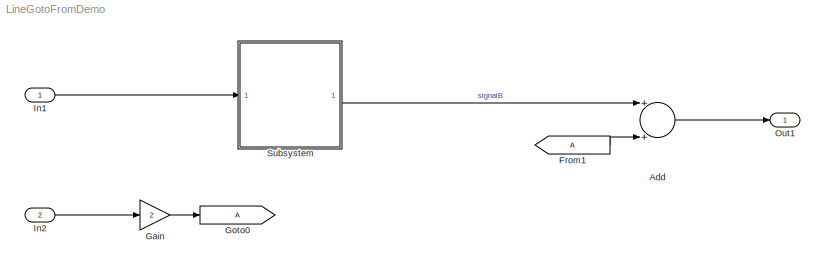
MODEL LineGotoFromDemo
KIND model
BLOCK [Sum] Add
  InputSameDT = off
  OutDataTypeStr = Inherit: Inherit via internal rule
  Ports = [2, 1]
  SID = 33
  SaturateOnIntegerOverflow = off
BLOCK [From] From1
  GotoTag = A
  SID = 62
BLOCK [Gain] Gain
  Gain = 2
  OutDataTypeStr = Inherit: Inherit via internal rule
  ParamDataTypeStr = Inherit: Inherit via internal rule
  SID = 60
  SaturateOnIntegerOverflow = off
BLOCK [Goto] Goto0
  GotoTag = A
  SID = 61
  TagVisibility = local
BLOCK [Inport] In1
  IconDisplay = Port number
  SID = 57
BLOCK [Inport] In2
  IconDisplay = Port number
  Port = 2
  SID = 58
BLOCK [Outport] Out1
  IconDisplay = Port number
  SID = 2
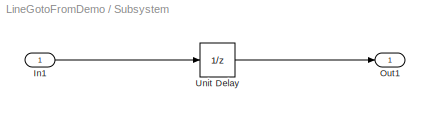
BLOCK [SubSystem] Subsystem
  FunctionWithSeparateData = off
  MaskHideContents = off
  MinAlgLoopOccurrences = off
  Opaque = off
  Ports = [1, 1]
  PropExecContextOutsideSubsystem = off
  RTWSystemCode = Auto
  RequestExecContextInheritance = off
  SID = 37
BLOCK [Inport] Subsystem/In1
  IconDisplay = Port number
  SID = 38
BLOCK [Outport] Subsystem/Out1
  IconDisplay = Port number
  SID = 39
BLOCK [UnitDelay] Subsystem/Unit Delay
  InputProcessing = Elements as channels (sample based)
  SID = 59
  SampleTime = -1
LINE Add:1 -> Out1:1
LINE From1:1 -> Add:2
LINE Gain:1 -> Goto0:1
LINE In1:1 -> Subsystem:1
LINE In2:1 -> Gain:1
LINE Subsystem/In1:1 -> Subsystem/Unit Delay:1
LINE Subsystem/Unit Delay:1 -> Subsystem/Out1:1
LINE Subsystem:1 -> Add:1
